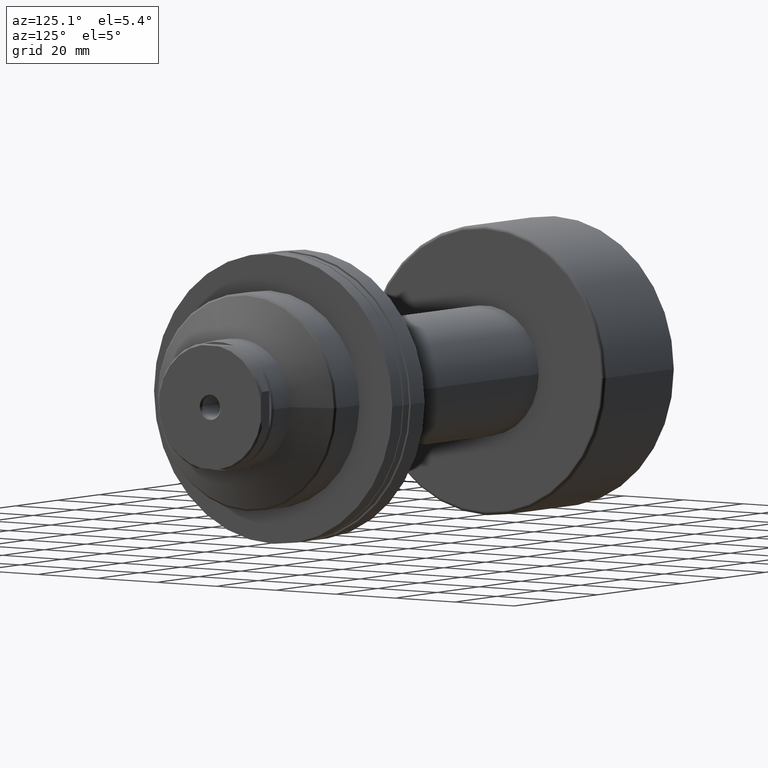
[diagram: clean part render]
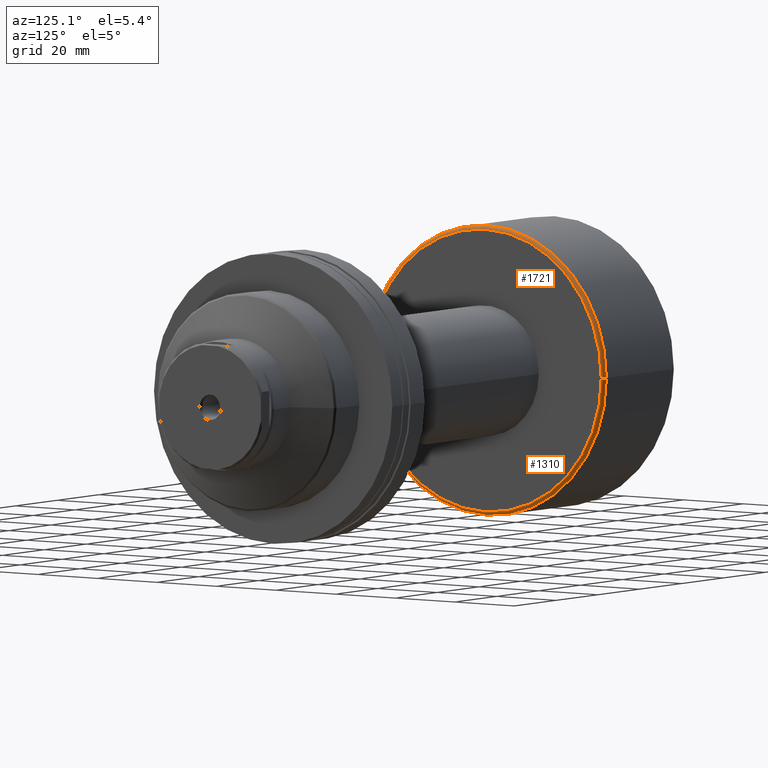
[diagram: same view with one multi-face feature highlighted, each face labeled with its STEP entity id]
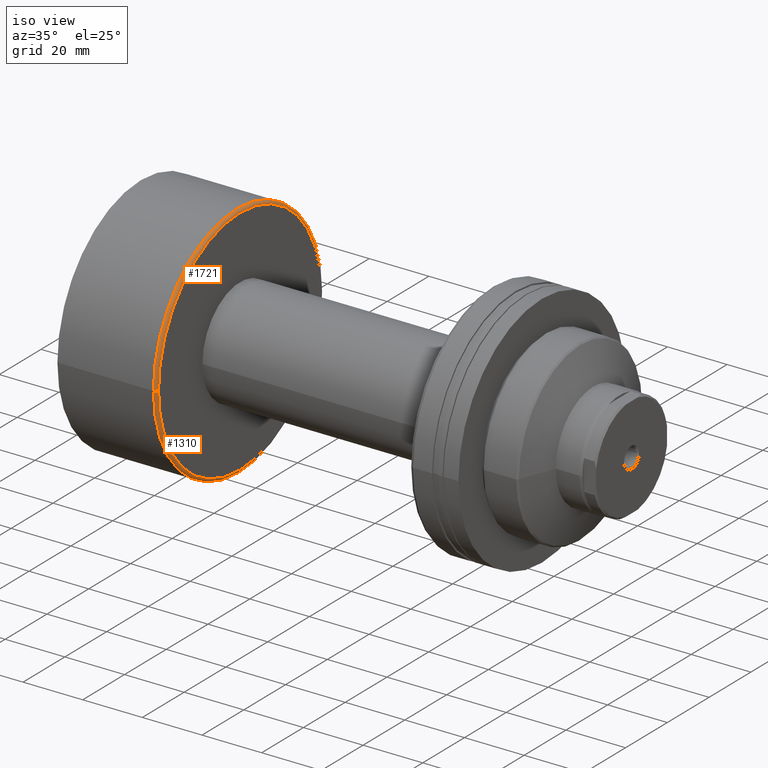
[diagram: same view with one multi-face feature highlighted, each face labeled with its STEP entity id]
A machine part, auxiliary view. The highlighted faces form ONE feature: a constant-radius fillet chain: 2 tangent blend faces with common blend radius 1 mm. The faces share edges in the B-rep.
A second angle (iso view) of the same feature is appended — it is thin or edge-on in the first view.
Their STEP definitions:
[1] entity #1721 (Torus):
#42 = EDGE_CURVE ( 'NONE', #1145, #114, #1634, .T. ) ;
#112 = CARTESIAN_POINT ( 'NONE',  ( 34.70000000000001705, -38.99999999999999289, 0.000000000000000000 ) ) ;
#114 = VERTEX_POINT ( 'NONE', #1050 ) ;
#394 = DIRECTION ( 'NONE',  ( -1.000000000000000000, -1.069542322069065801E-17, -0.000000000000000000 ) ) ;
#512 = DIRECTION ( 'NONE',  ( 1.309811581274509052E-33, -1.224646799147353207E-16, 1.000000000000000000 ) ) ;
#637 = AXIS2_PLACEMENT_3D ( 'NONE', #1993, #394, #747 ) ;
#667 = DIRECTION ( 'NONE',  ( 0.000000000000000000, -1.000000000000000000, -1.224646799147357151E-16 ) ) ;
#718 = CIRCLE ( 'NONE', #2036, 38.99999999999999289 ) ;
#731 = CARTESIAN_POINT ( 'NONE',  ( 33.70000000000001705, -39.99999999999999289, 0.000000000000000000 ) ) ;
#747 = DIRECTION ( 'NONE',  ( 1.069542322069065801E-17, -1.000000000000000000, 0.000000000000000000 ) ) ;
#830 = EDGE_CURVE ( 'NONE', #1067, #1145, #1747, .T. ) ;
#846 = ORIENTED_EDGE ( 'NONE', *, *, #1759, .T. ) ;
#876 = VERTEX_POINT ( 'NONE', #928 ) ;
#882 = DIRECTION ( 'NONE',  ( -1.000000000000000000, 0.000000000000000000, 0.000000000000000000 ) ) ;
#915 = ORIENTED_EDGE ( 'NONE', *, *, #42, .F. ) ;
#928 = CARTESIAN_POINT ( 'NONE',  ( 34.70000000000001705, 38.99999999999999289, 4.837354856632044663E-15 ) ) ;
#937 = AXIS2_PLACEMENT_3D ( 'NONE', #1344, #1199, #882 ) ;
#968 = AXIS2_PLACEMENT_3D ( 'NONE', #1416, #2172, #1838 ) ;
#1050 = CARTESIAN_POINT ( 'NONE',  ( 33.70000000000001705, 39.99999999999999289, 4.898587196589412237E-15 ) ) ;
#1067 = VERTEX_POINT ( 'NONE', #112 ) ;
#1145 = VERTEX_POINT ( 'NONE', #731 ) ;
#1199 = DIRECTION ( 'NONE',  ( 0.000000000000000000, 0.000000000000000000, -1.000000000000000000 ) ) ;
#1305 = DIRECTION ( 'NONE',  ( -1.000000000000000000, -1.069542322069065801E-17, -0.000000000000000000 ) ) ;
#1331 = CARTESIAN_POINT ( 'NONE',  ( 34.70000000000001705, 3.711311857579660173E-16, 0.000000000000000000 ) ) ;
#1339 = EDGE_LOOP ( 'NONE', ( #846, #1989, #915, #2006 ) ) ;
#1344 = CARTESIAN_POINT ( 'NONE',  ( 33.70000000000001705, -38.99999999999999289, 0.000000000000000000 ) ) ;
#1400 = AXIS2_PLACEMENT_3D ( 'NONE', #1920, #512, #667 ) ;
#1416 = CARTESIAN_POINT ( 'NONE',  ( 33.70000000000001705, 3.604357625372753238E-16, 0.000000000000000000 ) ) ;
#1436 = CIRCLE ( 'NONE', #1400, 1.000000000000000888 ) ;
#1634 = CIRCLE ( 'NONE', #968, 39.99999999999999289 ) ;
#1640 = TOROIDAL_SURFACE ( 'NONE', #637, 38.99999999999999289, 1.000000000000000888 ) ;
#1669 = DIRECTION ( 'NONE',  ( 0.000000000000000000, -1.000000000000000000, 0.000000000000000000 ) ) ;
#1721 = ADVANCED_FACE ( 'NONE', ( #2224 ), #1640, .T. ) ;
#1747 = CIRCLE ( 'NONE', #937, 1.000000000000000888 ) ;
#1759 = EDGE_CURVE ( 'NONE', #1067, #876, #718, .T. ) ;
#1838 = DIRECTION ( 'NONE',  ( 0.000000000000000000, -1.000000000000000000, 0.000000000000000000 ) ) ;
#1920 = CARTESIAN_POINT ( 'NONE',  ( 33.70000000000001705, 38.99999999999999289, 4.776122516674677089E-15 ) ) ;
#1989 = ORIENTED_EDGE ( 'NONE', *, *, #2041, .T. ) ;
#1993 = CARTESIAN_POINT ( 'NONE',  ( 33.70000000000001705, 0.000000000000000000, 0.000000000000000000 ) ) ;
#2006 = ORIENTED_EDGE ( 'NONE', *, *, #830, .F. ) ;
#2036 = AXIS2_PLACEMENT_3D ( 'NONE', #1331, #1305, #1669 ) ;
#2041 = EDGE_CURVE ( 'NONE', #876, #114, #1436, .T. ) ;
#2172 = DIRECTION ( 'NONE',  ( -1.000000000000000000, -1.069542322069065801E-17, -0.000000000000000000 ) ) ;
#2224 = FACE_OUTER_BOUND ( 'NONE', #1339, .T. ) ;
[2] entity #1310 (Torus):
#25 = CIRCLE ( 'NONE', #1088, 38.99999999999999289 ) ;
#64 = CARTESIAN_POINT ( 'NONE',  ( 33.70000000000001705, 3.604357625372753238E-16, 0.000000000000000000 ) ) ;
#112 = CARTESIAN_POINT ( 'NONE',  ( 34.70000000000001705, -38.99999999999999289, 0.000000000000000000 ) ) ;
#114 = VERTEX_POINT ( 'NONE', #1050 ) ;
#123 = AXIS2_PLACEMENT_3D ( 'NONE', #64, #1255, #1806 ) ;
#146 = ORIENTED_EDGE ( 'NONE', *, *, #500, .F. ) ;
#167 = CIRCLE ( 'NONE', #123, 39.99999999999999289 ) ;
#173 = DIRECTION ( 'NONE',  ( -1.000000000000000000, -1.069542322069065801E-17, -0.000000000000000000 ) ) ;
#379 = EDGE_CURVE ( 'NONE', #876, #1067, #25, .T. ) ;
#500 = EDGE_CURVE ( 'NONE', #114, #1145, #167, .T. ) ;
#512 = DIRECTION ( 'NONE',  ( 1.309811581274509052E-33, -1.224646799147353207E-16, 1.000000000000000000 ) ) ;
#624 = FACE_OUTER_BOUND ( 'NONE', #1985, .T. ) ;
#634 = TOROIDAL_SURFACE ( 'NONE', #2276, 38.99999999999999289, 1.000000000000000888 ) ;
#667 = DIRECTION ( 'NONE',  ( 0.000000000000000000, -1.000000000000000000, -1.224646799147357151E-16 ) ) ;
#730 = ORIENTED_EDGE ( 'NONE', *, *, #2041, .F. ) ;
#731 = CARTESIAN_POINT ( 'NONE',  ( 33.70000000000001705, -39.99999999999999289, 0.000000000000000000 ) ) ;
#830 = EDGE_CURVE ( 'NONE', #1067, #1145, #1747, .T. ) ;
#876 = VERTEX_POINT ( 'NONE', #928 ) ;
#882 = DIRECTION ( 'NONE',  ( -1.000000000000000000, 0.000000000000000000, 0.000000000000000000 ) ) ;
#928 = CARTESIAN_POINT ( 'NONE',  ( 34.70000000000001705, 38.99999999999999289, 4.837354856632044663E-15 ) ) ;
#937 = AXIS2_PLACEMENT_3D ( 'NONE', #1344, #1199, #882 ) ;
#1050 = CARTESIAN_POINT ( 'NONE',  ( 33.70000000000001705, 39.99999999999999289, 4.898587196589412237E-15 ) ) ;
#1067 = VERTEX_POINT ( 'NONE', #112 ) ;
#1088 = AXIS2_PLACEMENT_3D ( 'NONE', #1203, #173, #2192 ) ;
#1145 = VERTEX_POINT ( 'NONE', #731 ) ;
#1170 = DIRECTION ( 'NONE',  ( 1.069542322069065801E-17, -1.000000000000000000, 0.000000000000000000 ) ) ;
#1199 = DIRECTION ( 'NONE',  ( 0.000000000000000000, 0.000000000000000000, -1.000000000000000000 ) ) ;
#1203 = CARTESIAN_POINT ( 'NONE',  ( 34.70000000000001705, 3.711311857579660173E-16, 0.000000000000000000 ) ) ;
#1255 = DIRECTION ( 'NONE',  ( -1.000000000000000000, -1.069542322069065801E-17, -0.000000000000000000 ) ) ;
#1310 = ADVANCED_FACE ( 'NONE', ( #624 ), #634, .T. ) ;
#1344 = CARTESIAN_POINT ( 'NONE',  ( 33.70000000000001705, -38.99999999999999289, 0.000000000000000000 ) ) ;
#1400 = AXIS2_PLACEMENT_3D ( 'NONE', #1920, #512, #667 ) ;
#1436 = CIRCLE ( 'NONE', #1400, 1.000000000000000888 ) ;
#1747 = CIRCLE ( 'NONE', #937, 1.000000000000000888 ) ;
#1806 = DIRECTION ( 'NONE',  ( 0.000000000000000000, -1.000000000000000000, 0.000000000000000000 ) ) ;
#1844 = ORIENTED_EDGE ( 'NONE', *, *, #830, .T. ) ;
#1920 = CARTESIAN_POINT ( 'NONE',  ( 33.70000000000001705, 38.99999999999999289, 4.776122516674677089E-15 ) ) ;
#1985 = EDGE_LOOP ( 'NONE', ( #730, #2228, #1844, #146 ) ) ;
#2041 = EDGE_CURVE ( 'NONE', #876, #114, #1436, .T. ) ;
#2066 = CARTESIAN_POINT ( 'NONE',  ( 33.70000000000001705, 0.000000000000000000, 0.000000000000000000 ) ) ;
#2091 = DIRECTION ( 'NONE',  ( -1.000000000000000000, -1.069542322069065801E-17, -0.000000000000000000 ) ) ;
#2192 = DIRECTION ( 'NONE',  ( 0.000000000000000000, -1.000000000000000000, 0.000000000000000000 ) ) ;
#2228 = ORIENTED_EDGE ( 'NONE', *, *, #379, .T. ) ;
#2276 = AXIS2_PLACEMENT_3D ( 'NONE', #2066, #2091, #1170 ) ;